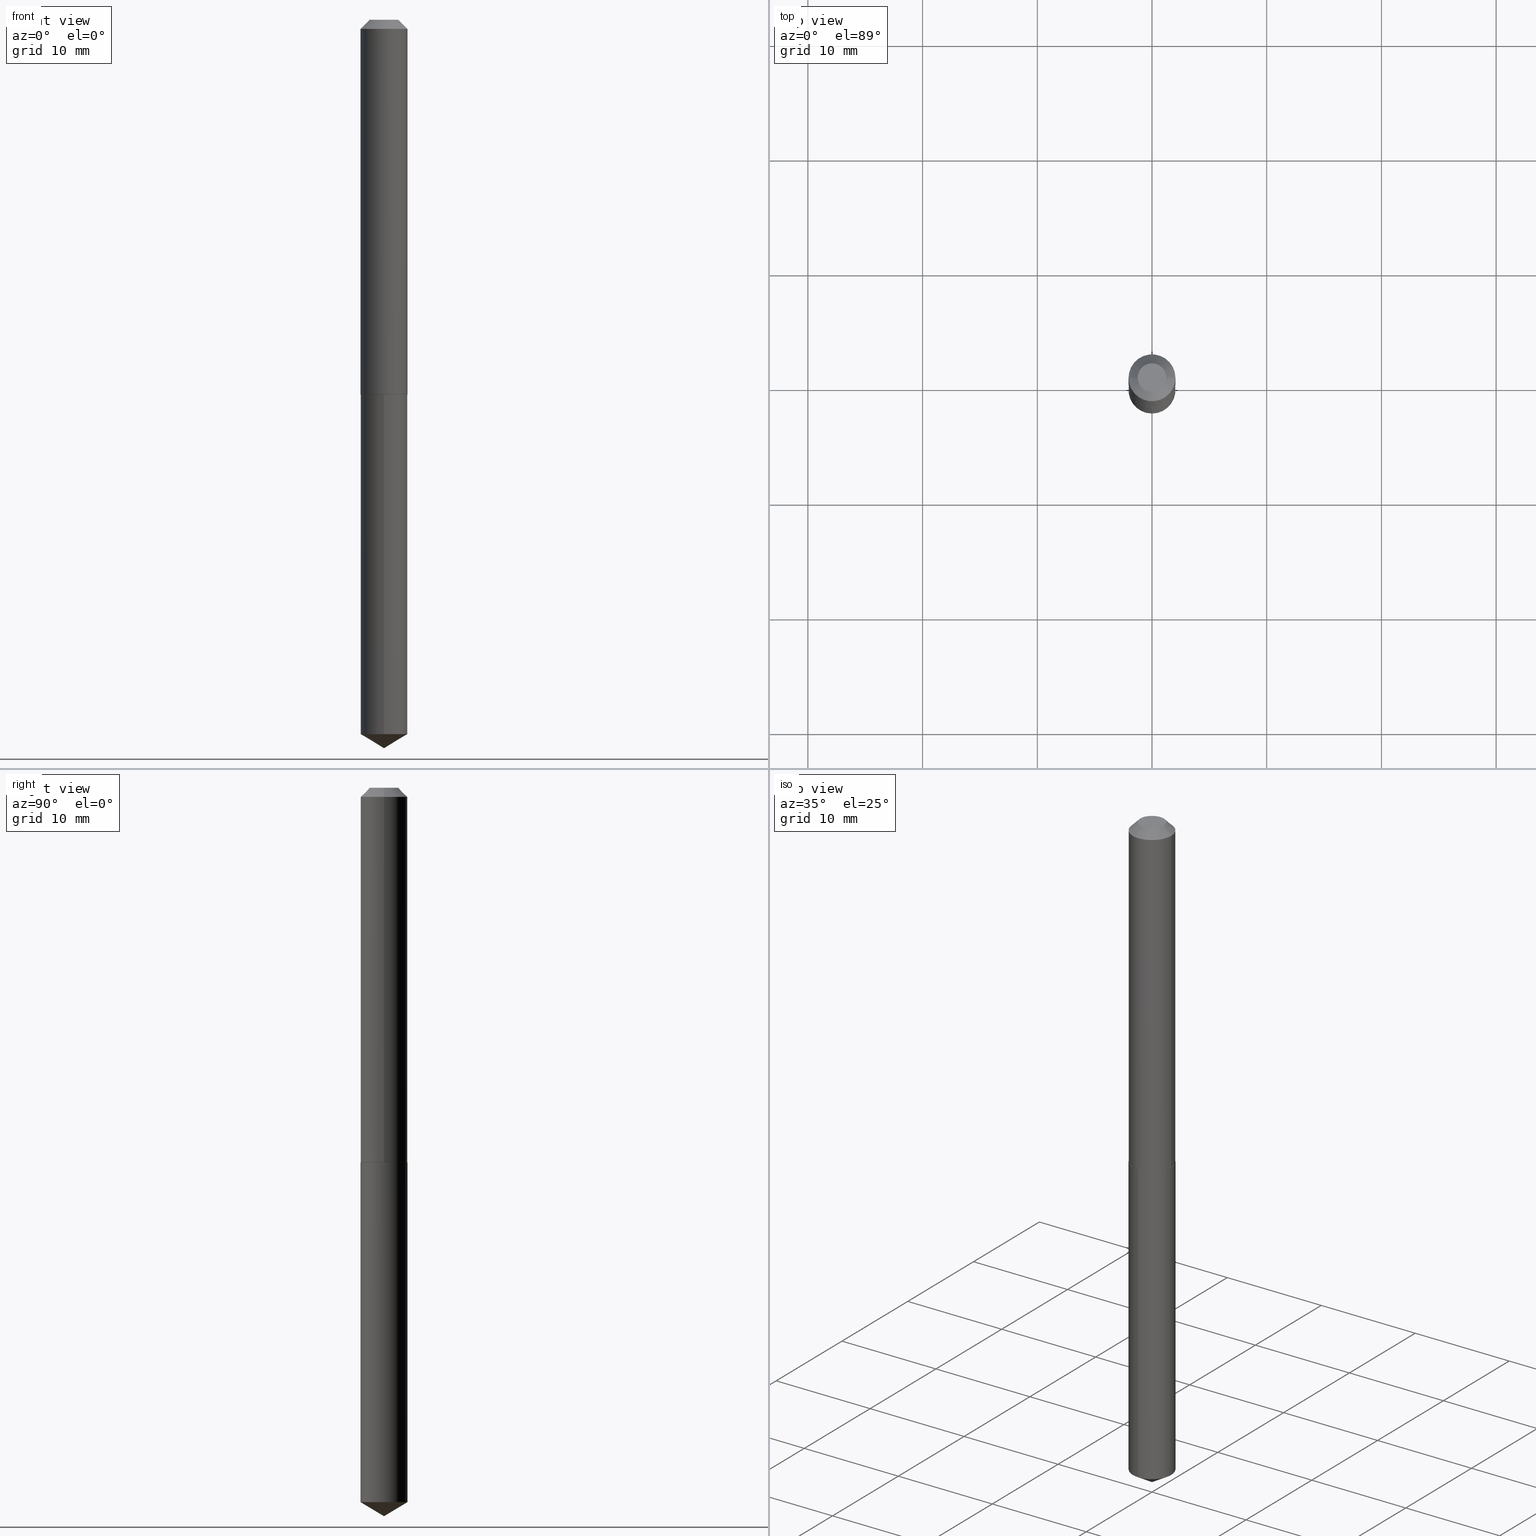
[diagram: canonical four-view strip — front | top / right | iso, engineering-drawing reading convention]
A machine part, canonical four-view strip (front | top / right | iso — engineering-drawing reading convention). The complete STEP part file that produces these views, byte-faithful:
ISO-10303-21;
HEADER;
FILE_DESCRIPTION (( 'STEP AP203' ),
    '1' );
FILE_NAME ('51020.STEP',
    '2024-04-22T18:13:58',
    ( '' ),
    ( '' ),
    'SwSTEP 2.0',
    'SolidWorks 2023',
    '' );
FILE_SCHEMA (( 'CONFIG_CONTROL_DESIGN' ));
ENDSEC;

DATA;
#1 = AXIS2_PLACEMENT_3D ( 'NONE', #347, #283, #183 ) ;
#2 = APPROVAL_DATE_TIME ( #356, #159 ) ;
#3 = LINE ( 'NONE', #121, #148 ) ;
#4 = ORIENTED_EDGE ( 'NONE', *, *, #10, .T. ) ;
#5 = CARTESIAN_POINT ( 'NONE',  ( -0.08050000000000016864, -3.916312358795983195E-15, -1.285500000000000309 ) ) ;
#6 = CARTESIAN_POINT ( 'NONE',  ( -0.08050000000000016864, -3.916312358795983195E-15, -1.285500000000000309 ) ) ;
#7 = CIRCLE ( 'NONE', #166, 0.08050000000000016864 ) ;
#8 = LINE ( 'NONE', #5, #309 ) ;
#9 = LINE ( 'NONE', #340, #39 ) ;
#10 = EDGE_CURVE ( 'NONE', #119, #146, #76, .T. ) ;
#11 = FACE_OUTER_BOUND ( 'NONE', #308, .T. ) ;
#12 = VERTEX_POINT ( 'NONE', #6 ) ;
#13 = CARTESIAN_POINT ( 'NONE',  ( -0.08050000000000000211, -1.726717124173974780E-15, -0.03125000000000020123 ) ) ;
#14 = PERSON_AND_ORGANIZATION_ROLE ( 'classification_officer' ) ;
#15 = DIRECTION ( 'NONE',  ( -2.445462856244294093E-29, 3.491489859497081340E-15, 1.000000000000000000 ) ) ;
#16 = FACE_OUTER_BOUND ( 'NONE', #217, .T. ) ;
#17 = AXIS2_PLACEMENT_3D ( 'NONE', #282, #127, #362 ) ;
#18 = ORIENTED_EDGE ( 'NONE', *, *, #53, .F. ) ;
#19 = APPROVAL_ROLE ( '' ) ;
#20 = LINE ( 'NONE', #354, #384 ) ;
#21 = VECTOR ( 'NONE', #311, 39.37007874015748143 ) ;
#22 = AXIS2_PLACEMENT_3D ( 'NONE', #318, #191, #294 ) ;
#23 = EDGE_CURVE ( 'NONE', #90, #184, #124, .T. ) ;
#24 =( NAMED_UNIT ( * ) SI_UNIT ( $, .STERADIAN. ) SOLID_ANGLE_UNIT ( ) );
#25 = CIRCLE ( 'NONE', #225, 0.08050000000000000211 ) ;
#26 = AXIS2_PLACEMENT_3D ( 'NONE', #164, #128, #289 ) ;
#27 = ORIENTED_EDGE ( 'NONE', *, *, #51, .F. ) ;
#28 = EDGE_LOOP ( 'NONE', ( #388, #97, #193, #313 ) ) ;
#29 = CONICAL_SURFACE ( 'NONE', #140, 0.08050000000000016864, 0.7853981633975507526 ) ;
#30 = CALENDAR_DATE ( 2024, 22, 4 ) ;
#31 = ADVANCED_FACE ( 'NONE', ( #244 ), #254, .T. ) ;
#32 = DIRECTION ( 'NONE',  ( 1.000000000000000000, -6.982962677686266711E-15, 0.000000000000000000 ) ) ;
#33 = CARTESIAN_POINT ( 'NONE',  ( 6.113672578050002293E-29, -8.728702733620781152E-15, -2.500000000000000000 ) ) ;
#34 = CARTESIAN_POINT ( 'NONE',  ( 0.08050000000000000211, -6.613788806594571634E-16, -0.03125000000000020123 ) ) ;
#35 = EDGE_LOOP ( 'NONE', ( #18, #153, #300, #338 ) ) ;
#36 = CARTESIAN_POINT ( 'NONE',  ( 5.719869022869407167E-16, 0.08049999999999550571, -1.286000000000000476 ) ) ;
#37 = ADVANCED_FACE ( 'NONE', ( #349 ), #74, .T. ) ;
#38 = LINE ( 'NONE', #34, #215 ) ;
#39 = VECTOR ( 'NONE', #65, 39.37007874015748143 ) ;
#40 = CC_DESIGN_APPROVAL ( #343, ( #66 ) ) ;
#41 = DIRECTION ( 'NONE',  ( -2.445468806185136597E-29, 3.491481338843145583E-15, 1.000000000000000000 ) ) ;
#42 = CARTESIAN_POINT ( 'NONE',  ( 0.08050000000000008538, -5.621284955537450540E-16, 3.925322304515732881E-30 ) ) ;
#43 = ORIENTED_EDGE ( 'NONE', *, *, #23, .T. ) ;
#44 = DIRECTION ( 'NONE',  ( -2.445468806185136597E-29, 3.491481338843145583E-15, 1.000000000000000000 ) ) ;
#45 = PERSON_AND_ORGANIZATION_ROLE ( 'creator' ) ;
#46 = DIRECTION ( 'NONE',  ( -6.982962677686266711E-15, -1.000000000000000000, 3.393599992129519526E-15 ) ) ;
#47 = FACE_OUTER_BOUND ( 'NONE', #327, .T. ) ;
#48 = LOCAL_TIME ( 14, 13, 58.00000000000000000, #257 ) ;
#49 = CARTESIAN_POINT ( 'NONE',  ( 7.834277737929405928E-31, -8.881490651567582348E-15, -1.286000000000000254 ) ) ;
#50 = APPROVAL_DATE_TIME ( #319, #105 ) ;
#51 = EDGE_CURVE ( 'NONE', #317, #286, #387, .T. ) ;
#52 = DIMENSIONAL_EXPONENTS ( 1.000000000000000000, 0.000000000000000000, 0.000000000000000000, 0.000000000000000000, 0.000000000000000000, 0.000000000000000000, 0.000000000000000000 ) ;
#53 = EDGE_CURVE ( 'NONE', #317, #71, #38, .T. ) ;
#54 = ORIENTED_EDGE ( 'NONE', *, *, #120, .T. ) ;
#55 = CONICAL_SURFACE ( 'NONE', #22, 65.52281426576895740, 1.029744258676658086 ) ;
#56 = ADVANCED_FACE ( 'NONE', ( #152 ), #365, .F. ) ;
#57 = ORIENTED_EDGE ( 'NONE', *, *, #240, .F. ) ;
#58 = CONICAL_SURFACE ( 'NONE', #290, 0.08050000000000000211, 0.7853981633974450594 ) ;
#59 = VERTEX_POINT ( 'NONE', #227 ) ;
#60 = DIRECTION ( 'NONE',  ( 1.000000000000000000, -6.982962677686264344E-15, 0.000000000000000000 ) ) ;
#61 = FACE_OUTER_BOUND ( 'NONE', #84, .T. ) ;
#62 = DIRECTION ( 'NONE',  ( 0.7071067811865452413, -7.319954787623248157E-15, -0.7071067811865497932 ) ) ;
#63 = ORIENTED_EDGE ( 'NONE', *, *, #155, .F. ) ;
#64 = DIRECTION ( 'NONE',  ( -2.445462856244294093E-29, 3.491489859497081340E-15, 1.000000000000000000 ) ) ;
#65 = DIRECTION ( 'NONE',  ( -2.445468806185136877E-29, 3.491481338843145188E-15, 1.000000000000000000 ) ) ;
#66 = PRODUCT_DEFINITION_FORMATION_WITH_SPECIFIED_SOURCE ( 'ANY', '', #269, .NOT_KNOWN. ) ;
#67 = DIRECTION ( 'NONE',  ( 2.445468806185136597E-29, -3.491481338843145583E-15, -1.000000000000000000 ) ) ;
#68 = ORIENTED_EDGE ( 'NONE', *, *, #112, .F. ) ;
#69 = CARTESIAN_POINT ( 'NONE',  ( 0.000000000000000000, 0.000000000000000000, 0.000000000000000000 ) ) ;
#70 = CALENDAR_DATE ( 2024, 22, 4 ) ;
#71 = VERTEX_POINT ( 'NONE', #219 ) ;
#72 = EDGE_CURVE ( 'NONE', #150, #71, #175, .T. ) ;
#73 = CARTESIAN_POINT ( 'NONE',  ( 5.995379515022905912E-29, -8.559832841138121556E-15, -2.451630720168282096 ) ) ;
#74 = CYLINDRICAL_SURFACE ( 'NONE', #328, 0.08050000000000008538 ) ;
#75 = EDGE_CURVE ( 'NONE', #12, #150, #9, .T. ) ;
#76 = CIRCLE ( 'NONE', #279, 0.08050000000000000211 ) ;
#77 = CARTESIAN_POINT ( 'NONE',  ( 3.143650150350993956E-29, -4.488299261082864747E-15, -1.285500000000000309 ) ) ;
#78 = DIRECTION ( 'NONE',  ( 1.000000000000000000, -6.982962677686266711E-15, 4.876176775795936353E-29 ) ) ;
#79 = CC_DESIGN_PERSON_AND_ORGANIZATION_ASSIGNMENT ( #285, #14, ( #199 ) ) ;
#80 = DIRECTION ( 'NONE',  ( 1.000000000000000000, -6.982962677686264344E-15, 0.000000000000000000 ) ) ;
#81 = APPROVAL_STATUS ( 'not_yet_approved' ) ;
#82 = PERSON_AND_ORGANIZATION ( #208, #207 ) ;
#83 = EDGE_CURVE ( 'NONE', #59, #71, #187, .T. ) ;
#84 = EDGE_LOOP ( 'NONE', ( #43, #101 ) ) ;
#85 = CONICAL_SURFACE ( 'NONE', #272, 0.08050000000000000211, 0.7853981633974450594 ) ;
#86 = APPROVAL_PERSON_ORGANIZATION ( #163, #159, #108 ) ;
#87 = ADVANCED_FACE ( 'NONE', ( #158 ), #29, .T. ) ;
#88 = APPLICATION_CONTEXT ( 'configuration controlled 3d designs of mechanical parts and assemblies' ) ;
#89 = COORDINATED_UNIVERSAL_TIME_OFFSET ( 5, 0, .BEHIND. ) ;
#90 = VERTEX_POINT ( 'NONE', #189 ) ;
#91 = DIRECTION ( 'NONE',  ( -1.000000000000000000, 6.982962677686266711E-15, 0.000000000000000000 ) ) ;
#92 = EDGE_CURVE ( 'NONE', #94, #119, #364, .T. ) ;
#93 = CLOSED_SHELL ( 'NONE', ( #389, #212, #246, #31, #173 ) ) ;
#94 = VERTEX_POINT ( 'NONE', #303 ) ;
#95 = DIRECTION ( 'NONE',  ( -0.7071067811866199593, 7.493145998870616062E-15, 0.7071067811864750752 ) ) ;
#96 = DIRECTION ( 'NONE',  ( 2.438088387897960049E-29, -3.491481338843145188E-15, -1.000000000000000000 ) ) ;
#97 = ORIENTED_EDGE ( 'NONE', *, *, #240, .T. ) ;
#98 = LINE ( 'NONE', #339, #171 ) ;
#99 = DIRECTION ( 'NONE',  ( 1.000000000000000000, -6.982962677686266711E-15, 4.876176775795936353E-29 ) ) ;
#100 = CARTESIAN_POINT ( 'NONE',  ( 3.143650150350993956E-29, -4.488299261082864747E-15, -1.285500000000000309 ) ) ;
#101 = ORIENTED_EDGE ( 'NONE', *, *, #211, .T. ) ;
#102 = AXIS2_PLACEMENT_3D ( 'NONE', #109, #15, #133 ) ;
#103 = LOCAL_TIME ( 14, 13, 58.00000000000000000, #169 ) ;
#104 = DIRECTION ( 'NONE',  ( 1.000000000000000000, -6.982962677686264344E-15, 0.000000000000000000 ) ) ;
#105 = APPROVAL ( #81, 'UNSPECIFIED' ) ;
#106 = DIRECTION ( 'NONE',  ( -2.445468806185136597E-29, 3.491481338843145583E-15, 1.000000000000000000 ) ) ;
#107 = DIRECTION ( 'NONE',  ( 1.000000000000000000, -6.982962677686269866E-15, 0.000000000000000000 ) ) ;
#108 = APPROVAL_ROLE ( '' ) ;
#109 = CARTESIAN_POINT ( 'NONE',  ( 3.144872884754086197E-29, -4.490045001752285461E-15, -1.286000000000000254 ) ) ;
#110 = FACE_OUTER_BOUND ( 'NONE', #379, .T. ) ;
#111 = PERSON_AND_ORGANIZATION ( #208, #207 ) ;
#112 = EDGE_CURVE ( 'NONE', #94, #146, #304, .T. ) ;
#113 = CYLINDRICAL_SURFACE ( 'NONE', #238, 0.08050000000000000211 ) ;
#114 = CC_DESIGN_APPROVAL ( #105, ( #331 ) ) ;
#115 = DATE_AND_TIME ( #346, #296 ) ;
#116 = CARTESIAN_POINT ( 'NONE',  ( 0.08000000000000016820, -5.048682015967188692E-15, -1.286000000000000254 ) ) ;
#117 = PERSON_AND_ORGANIZATION ( #208, #207 ) ;
#118 = MECHANICAL_CONTEXT ( 'NONE', #353, 'mechanical' ) ;
#119 = VERTEX_POINT ( 'NONE', #276 ) ;
#120 = EDGE_CURVE ( 'NONE', #333, #12, #8, .T. ) ;
#121 = CARTESIAN_POINT ( 'NONE',  ( 5.719869022869119232E-16, 0.08049999999999550571, -1.286000000000000476 ) ) ;
#122 = ORIENTED_EDGE ( 'NONE', *, *, #131, .T. ) ;
#123 = ORIENTED_EDGE ( 'NONE', *, *, #380, .F. ) ;
#124 = CIRCLE ( 'NONE', #102, 0.08050000000000000211 ) ;
#125 = CARTESIAN_POINT ( 'NONE',  ( 3.144872884754086197E-29, -4.490045001752285461E-15, -1.286000000000000254 ) ) ;
#126 = DIRECTION ( 'NONE',  ( -1.000000000000000000, 6.982962677686265922E-15, -4.876176775795935793E-29 ) ) ;
#127 = DIRECTION ( 'NONE',  ( -2.445462856244294093E-29, 3.491489859497081340E-15, 1.000000000000000000 ) ) ;
#128 = DIRECTION ( 'NONE',  ( -2.445468806185136597E-29, 3.491481338843145583E-15, 1.000000000000000000 ) ) ;
#129 = PERSON_AND_ORGANIZATION_ROLE ( 'design_owner' ) ;
#130 = DESIGN_CONTEXT ( 'detailed design', #88, 'design' ) ;
#131 = EDGE_CURVE ( 'NONE', #71, #150, #25, .T. ) ;
#132 = FACE_OUTER_BOUND ( 'NONE', #35, .T. ) ;
#133 = DIRECTION ( 'NONE',  ( -6.982962677686266711E-15, -1.000000000000000000, 3.393599992129519526E-15 ) ) ;
#134 = LOCAL_TIME ( 14, 13, 58.00000000000000000, #89 ) ;
#135 = DIRECTION ( 'NONE',  ( 1.000000000000000000, -6.982962677686264344E-15, 0.000000000000000000 ) ) ;
#136 = ORIENTED_EDGE ( 'NONE', *, *, #211, .F. ) ;
#137 = CARTESIAN_POINT ( 'NONE',  ( -5.621284955537130065E-16, -0.08050000000000449851, -1.285999999999999810 ) ) ;
#138 = PERSON_AND_ORGANIZATION ( #208, #207 ) ;
#139 = DATE_AND_TIME ( #196, #103 ) ;
#140 = AXIS2_PLACEMENT_3D ( 'NONE', #252, #278, #60 ) ;
#141 = CARTESIAN_POINT ( 'NONE',  ( -0.08000000000000016820, -3.918961585970093607E-15, -1.286000000000000254 ) ) ;
#142 = ADVANCED_FACE ( 'NONE', ( #11 ), #85, .T. ) ;
#143 = SHAPE_DEFINITION_REPRESENTATION ( #144, #180 ) ;
#144 = PRODUCT_DEFINITION_SHAPE ( 'NONE', 'NONE',  #331 ) ;
#145 = CC_DESIGN_PERSON_AND_ORGANIZATION_ASSIGNMENT ( #111, #355, ( #66 ) ) ;
#146 = VERTEX_POINT ( 'NONE', #336 ) ;
#147 = ORIENTED_EDGE ( 'NONE', *, *, #75, .T. ) ;
#148 = VECTOR ( 'NONE', #241, 39.37007874015748143 ) ;
#149 = DIRECTION ( 'NONE',  ( 6.982962677686265922E-15, 1.000000000000000000, -3.491489859497080946E-15 ) ) ;
#150 = VERTEX_POINT ( 'NONE', #13 ) ;
#151 = DIRECTION ( 'NONE',  ( 1.000000000000000000, -6.982962677686269866E-15, 0.000000000000000000 ) ) ;
#152 = FACE_OUTER_BOUND ( 'NONE', #330, .T. ) ;
#153 = ORIENTED_EDGE ( 'NONE', *, *, #176, .F. ) ;
#154 = CARTESIAN_POINT ( 'NONE',  ( 3.743544432386666377E-48, -5.344789307371228159E-34, -1.530808498934194860E-19 ) ) ;
#155 = EDGE_CURVE ( 'NONE', #258, #333, #262, .T. ) ;
#156 = ORIENTED_EDGE ( 'NONE', *, *, #314, .F. ) ;
#157 = DIRECTION ( 'NONE',  ( -6.982962677686266711E-15, -1.000000000000000000, 3.393599992129519526E-15 ) ) ;
#158 = FACE_OUTER_BOUND ( 'NONE', #224, .T. ) ;
#159 = APPROVAL ( #378, 'UNSPECIFIED' ) ;
#160 = CARTESIAN_POINT ( 'NONE',  ( 6.113657140610735794E-29, -8.728724648742704336E-15, -2.500000000000000000 ) ) ;
#161 = DIRECTION ( 'NONE',  ( -2.445462856244294093E-29, 3.491489859497081340E-15, 1.000000000000000000 ) ) ;
#162 = DIRECTION ( 'NONE',  ( -2.445468806185136597E-29, 3.491481338843145583E-15, 1.000000000000000000 ) ) ;
#163 = PERSON_AND_ORGANIZATION ( #208, #207 ) ;
#164 = CARTESIAN_POINT ( 'NONE',  ( 7.487088864773332754E-48, -1.068957861474245632E-33, -3.061616997868389720E-19 ) ) ;
#165 = CIRCLE ( 'NONE', #342, 0.04925000000000000211 ) ;
#166 = AXIS2_PLACEMENT_3D ( 'NONE', #352, #44, #135 ) ;
#167 = DIRECTION ( 'NONE',  ( -6.982962677686266711E-15, -1.000000000000000000, 3.393599992129519526E-15 ) ) ;
#168 = LINE ( 'NONE', #137, #351 ) ;
#169 = COORDINATED_UNIVERSAL_TIME_OFFSET ( 5, 0, .BEHIND. ) ;
#170 = CARTESIAN_POINT ( 'NONE',  ( 0.000000000000000000, 0.000000000000000000, 0.000000000000000000 ) ) ;
#171 = VECTOR ( 'NONE', #274, 39.37007874015748143 ) ;
#172 =( NAMED_UNIT ( * ) PLANE_ANGLE_UNIT ( ) SI_UNIT ( $, .RADIAN. ) );
#173 = ADVANCED_FACE ( 'NONE', ( #61 ), #372, .F. ) ;
#174 = ORIENTED_EDGE ( 'NONE', *, *, #209, .T. ) ;
#175 = CIRCLE ( 'NONE', #1, 0.08050000000000000211 ) ;
#176 = EDGE_CURVE ( 'NONE', #286, #317, #165, .T. ) ;
#177 = DIRECTION ( 'NONE',  ( 6.090539988449793424E-15, 0.8571673007021159973, 0.5150380749100480493 ) ) ;
#178 = AXIS2_PLACEMENT_3D ( 'NONE', #170, #326, #206 ) ;
#179 = ORIENTED_EDGE ( 'NONE', *, *, #83, .F. ) ;
#180 = ADVANCED_BREP_SHAPE_REPRESENTATION ( '51020', ( #382, #390, #178 ), #210 ) ;
#181 = ORIENTED_EDGE ( 'NONE', *, *, #10, .F. ) ;
#182 = DIRECTION ( 'NONE',  ( 2.445462856244294374E-29, -3.491489859497080946E-15, -1.000000000000000000 ) ) ;
#183 = DIRECTION ( 'NONE',  ( 1.000000000000000000, -6.982962677686266711E-15, 0.000000000000000000 ) ) ;
#184 = VERTEX_POINT ( 'NONE', #36 ) ;
#185 = DIRECTION ( 'NONE',  ( -5.985567269335957057E-15, -0.8571673007021123336, 0.5150380749100540445 ) ) ;
#186 = EDGE_CURVE ( 'NONE', #258, #59, #98, .T. ) ;
#187 = LINE ( 'NONE', #42, #21 ) ;
#188 = APPROVAL_PERSON_ORGANIZATION ( #260, #105, #19 ) ;
#189 = CARTESIAN_POINT ( 'NONE',  ( -5.621284955537130065E-16, -0.08050000000000449851, -1.285999999999999810 ) ) ;
#190 = ORIENTED_EDGE ( 'NONE', *, *, #120, .F. ) ;
#191 = DIRECTION ( 'NONE',  ( -2.445462856244294093E-29, 3.491489859497081340E-15, 1.000000000000000000 ) ) ;
#192 = DATE_AND_TIME ( #70, #264 ) ;
#193 = ORIENTED_EDGE ( 'NONE', *, *, #83, .T. ) ;
#194 = UNCERTAINTY_MEASURE_WITH_UNIT (LENGTH_MEASURE( 1.000000000000000082E-05 ), #265, 'distance_accuracy_value', 'NONE');
#195 = PLANE ( 'NONE',  #302 ) ;
#196 = CALENDAR_DATE ( 2024, 22, 4 ) ;
#197 = DIRECTION ( 'NONE',  ( -2.445462856244294093E-29, 3.491489859497081340E-15, 1.000000000000000000 ) ) ;
#198 = VECTOR ( 'NONE', #177, 39.37007874015748854 ) ;
#199 = SECURITY_CLASSIFICATION ( '', '', #204 ) ;
#200 = DIRECTION ( 'NONE',  ( -6.982962677686266711E-15, -1.000000000000000000, 3.393599992129519526E-15 ) ) ;
#201 = APPLICATION_PROTOCOL_DEFINITION ( 'international standard', 'config_control_design', 1994, #88 ) ;
#202 = APPROVAL_DATE_TIME ( #115, #343 ) ;
#203 = DIRECTION ( 'NONE',  ( -2.438088387897960049E-29, 3.491481338843145188E-15, 1.000000000000000000 ) ) ;
#204 = SECURITY_CLASSIFICATION_LEVEL ( 'unclassified' ) ;
#205 = CLOSED_SHELL ( 'NONE', ( #142, #263, #87, #386, #323, #37, #236, #56 ) ) ;
#206 = DIRECTION ( 'NONE',  ( 1.000000000000000000, 0.000000000000000000, 0.000000000000000000 ) ) ;
#207 = ORGANIZATION ( 'UNSPECIFIED', 'UNSPECIFIED', '' ) ;
#208 = PERSON ( 'UNSPECIFIED', 'UNSPECIFIED', 'UNSPECIFIED', ('UNSPECIFIED'), ('UNSPECIFIED'), ('UNSPECIFIED') ) ;
#209 = EDGE_CURVE ( 'NONE', #146, #184, #3, .T. ) ;
#210 =( GEOMETRIC_REPRESENTATION_CONTEXT ( 3 ) GLOBAL_UNCERTAINTY_ASSIGNED_CONTEXT ( ( #194 ) ) GLOBAL_UNIT_ASSIGNED_CONTEXT ( ( #265, #172, #24 ) ) REPRESENTATION_CONTEXT ( 'NONE', 'WORKASPACE' ) );
#211 = EDGE_CURVE ( 'NONE', #184, #90, #373, .T. ) ;
#212 = ADVANCED_FACE ( 'NONE', ( #284 ), #358, .T. ) ;
#213 = ORIENTED_EDGE ( 'NONE', *, *, #92, .F. ) ;
#214 = DIRECTION ( 'NONE',  ( 1.000000000000000000, -6.982962677686267499E-15, 4.876119146040168273E-29 ) ) ;
#215 = VECTOR ( 'NONE', #62, 39.37007874015748143 ) ;
#216 = CC_DESIGN_APPROVAL ( #159, ( #199 ) ) ;
#217 = EDGE_LOOP ( 'NONE', ( #190, #239, #275, #57 ) ) ;
#218 = DIRECTION ( 'NONE',  ( -2.445468806185136597E-29, 3.491481338843145583E-15, 1.000000000000000000 ) ) ;
#219 = CARTESIAN_POINT ( 'NONE',  ( 0.08050000000000000211, -6.712372873925933657E-16, -0.03125000000000020123 ) ) ;
#220 = CC_DESIGN_DATE_AND_TIME_ASSIGNMENT ( #139, #253, ( #331 ) ) ;
#221 = ORIENTED_EDGE ( 'NONE', *, *, #51, .T. ) ;
#222 = ORIENTED_EDGE ( 'NONE', *, *, #155, .T. ) ;
#223 = DIRECTION ( 'NONE',  ( -2.445468806185136597E-29, 3.491481338843145583E-15, 1.000000000000000000 ) ) ;
#224 = EDGE_LOOP ( 'NONE', ( #222, #54, #123, #332 ) ) ;
#225 = AXIS2_PLACEMENT_3D ( 'NONE', #243, #218, #32 ) ;
#226 = APPLICATION_PROTOCOL_DEFINITION ( 'international standard', 'config_control_design', 1994, #353 ) ;
#227 = CARTESIAN_POINT ( 'NONE',  ( 0.08050000000000016864, -5.050427756636610195E-15, -1.285500000000000309 ) ) ;
#228 = DIRECTION ( 'NONE',  ( -0.7071067811865452413, 2.468850131082233000E-15, -0.7071067811865497932 ) ) ;
#229 = CARTESIAN_POINT ( 'NONE',  ( 5.995379515022905912E-29, -8.559832841138121556E-15, -2.451630720168282096 ) ) ;
#230 = LENGTH_MEASURE_WITH_UNIT ( LENGTH_MEASURE( 0.02539999999999999897 ), #292 );
#231 = PERSON_AND_ORGANIZATION_ROLE ( 'creator' ) ;
#232 = DIRECTION ( 'NONE',  ( -2.445468806185136597E-29, 3.491481338843145583E-15, 1.000000000000000000 ) ) ;
#233 = CC_DESIGN_DATE_AND_TIME_ASSIGNMENT ( #192, #316, ( #199 ) ) ;
#234 = APPROVAL_ROLE ( '' ) ;
#235 = CIRCLE ( 'NONE', #291, 0.08050000000000016864 ) ;
#236 = ADVANCED_FACE ( 'NONE', ( #132 ), #58, .T. ) ;
#237 = ORIENTED_EDGE ( 'NONE', *, *, #209, .F. ) ;
#238 = AXIS2_PLACEMENT_3D ( 'NONE', #325, #322, #167 ) ;
#239 = ORIENTED_EDGE ( 'NONE', *, *, #299, .T. ) ;
#240 = EDGE_CURVE ( 'NONE', #12, #59, #235, .T. ) ;
#241 = DIRECTION ( 'NONE',  ( -2.445462856244294093E-29, 3.491489859497080946E-15, 1.000000000000000000 ) ) ;
#242 = ORIENTED_EDGE ( 'NONE', *, *, #176, .T. ) ;
#243 = CARTESIAN_POINT ( 'NONE',  ( 7.642090019328600035E-31, -1.091087918388489897E-16, -0.03125000000000020123 ) ) ;
#244 = FACE_OUTER_BOUND ( 'NONE', #298, .T. ) ;
#245 = AXIS2_PLACEMENT_3D ( 'NONE', #73, #315, #200 ) ;
#246 = ADVANCED_FACE ( 'NONE', ( #288 ), #55, .T. ) ;
#247 = ORIENTED_EDGE ( 'NONE', *, *, #23, .F. ) ;
#248 = DIRECTION ( 'NONE',  ( -2.445468806185136597E-29, 3.491481338843145583E-15, 1.000000000000000000 ) ) ;
#249 = EDGE_LOOP ( 'NONE', ( #366, #147, #344, #179 ) ) ;
#250 = DIRECTION ( 'NONE',  ( 2.445468806185136597E-29, -3.491481338843145583E-15, -1.000000000000000000 ) ) ;
#251 = EDGE_LOOP ( 'NONE', ( #213, #270, #181 ) ) ;
#252 = CARTESIAN_POINT ( 'NONE',  ( 3.143650150350993956E-29, -4.488299261082864747E-15, -1.285500000000000309 ) ) ;
#253 = DATE_TIME_ROLE ( 'creation_date' ) ;
#254 = CYLINDRICAL_SURFACE ( 'NONE', #350, 0.08050000000000000211 ) ;
#255 = AXIS2_PLACEMENT_3D ( 'NONE', #341, #64, #157 ) ;
#256 = CARTESIAN_POINT ( 'NONE',  ( 3.144872884754086197E-29, -4.490045001752285461E-15, -1.286000000000000254 ) ) ;
#257 = COORDINATED_UNIVERSAL_TIME_OFFSET ( 5, 0, .BEHIND. ) ;
#258 = VERTEX_POINT ( 'NONE', #116 ) ;
#259 = DIRECTION ( 'NONE',  ( 1.000000000000000000, -6.982962677686265922E-15, 4.876176775795935793E-29 ) ) ;
#260 = PERSON_AND_ORGANIZATION ( #208, #207 ) ;
#261 = PERSON_AND_ORGANIZATION ( #208, #207 ) ;
#262 = CIRCLE ( 'NONE', #360, 0.08000000000000016820 ) ;
#263 = ADVANCED_FACE ( 'NONE', ( #266 ), #345, .T. ) ;
#264 = LOCAL_TIME ( 14, 13, 58.00000000000000000, #374 ) ;
#265 =( CONVERSION_BASED_UNIT ( 'INCH', #230 ) LENGTH_UNIT ( ) NAMED_UNIT ( #52 ) );
#266 = FACE_OUTER_BOUND ( 'NONE', #249, .T. ) ;
#267 = AXIS2_PLACEMENT_3D ( 'NONE', #256, #232, #107 ) ;
#268 = ORIENTED_EDGE ( 'NONE', *, *, #369, .T. ) ;
#269 = PRODUCT ( '51020', '51020', '', ( #118 ) ) ;
#270 = ORIENTED_EDGE ( 'NONE', *, *, #112, .T. ) ;
#271 = PRODUCT_RELATED_PRODUCT_CATEGORY ( 'detail', '', ( #269 ) ) ;
#272 = AXIS2_PLACEMENT_3D ( 'NONE', #312, #67, #91 ) ;
#273 = CONICAL_SURFACE ( 'NONE', #321, 0.08050000000000016864, 0.7853981633975507526 ) ;
#274 = DIRECTION ( 'NONE',  ( 0.7071067811866199593, -2.468850131083015945E-15, 0.7071067811864750752 ) ) ;
#275 = ORIENTED_EDGE ( 'NONE', *, *, #186, .T. ) ;
#276 = CARTESIAN_POINT ( 'NONE',  ( -5.621284955536844103E-16, -0.08050000000000855083, -2.451630720168281652 ) ) ;
#277 = ORIENTED_EDGE ( 'NONE', *, *, #92, .T. ) ;
#278 = DIRECTION ( 'NONE',  ( -2.445468806185136597E-29, 3.491481338843145583E-15, 1.000000000000000000 ) ) ;
#279 = AXIS2_PLACEMENT_3D ( 'NONE', #229, #161, #46 ) ;
#280 = CIRCLE ( 'NONE', #245, 0.08050000000000000211 ) ;
#281 = CARTESIAN_POINT ( 'NONE',  ( 3.144872884754086197E-29, -4.490045001752285461E-15, -1.286000000000000254 ) ) ;
#282 = CARTESIAN_POINT ( 'NONE',  ( -9.016440041423361419E-28, 1.287315169976797352E-13, 36.87007874015748143 ) ) ;
#283 = DIRECTION ( 'NONE',  ( -2.445468806185136597E-29, 3.491481338843145583E-15, 1.000000000000000000 ) ) ;
#284 = FACE_OUTER_BOUND ( 'NONE', #251, .T. ) ;
#285 = PERSON_AND_ORGANIZATION ( #208, #207 ) ;
#286 = VERTEX_POINT ( 'NONE', #377 ) ;
#287 = CC_DESIGN_PERSON_AND_ORGANIZATION_ASSIGNMENT ( #138, #45, ( #66 ) ) ;
#288 = FACE_OUTER_BOUND ( 'NONE', #335, .T. ) ;
#289 = DIRECTION ( 'NONE',  ( 1.000000000000000000, -6.982962677686267499E-15, 4.876119146040168273E-29 ) ) ;
#290 = AXIS2_PLACEMENT_3D ( 'NONE', #334, #250, #370 ) ;
#291 = AXIS2_PLACEMENT_3D ( 'NONE', #100, #223, #104 ) ;
#292 =( LENGTH_UNIT ( ) NAMED_UNIT ( * ) SI_UNIT ( $, .METRE. ) );
#293 = CC_DESIGN_PERSON_AND_ORGANIZATION_ASSIGNMENT ( #82, #129, ( #269 ) ) ;
#294 = DIRECTION ( 'NONE',  ( -6.982962677686265133E-15, -1.000000000000000000, 3.468864327941566210E-15 ) ) ;
#295 = VECTOR ( 'NONE', #185, 39.37007874015748143 ) ;
#296 = LOCAL_TIME ( 14, 13, 58.00000000000000000, #381 ) ;
#297 = CARTESIAN_POINT ( 'NONE',  ( 0.04925000000000000211, -4.996292035248525311E-16, -3.061616997838901325E-19 ) ) ;
#298 = EDGE_LOOP ( 'NONE', ( #237, #268, #371, #136 ) ) ;
#299 = EDGE_CURVE ( 'NONE', #333, #258, #375, .T. ) ;
#300 = ORIENTED_EDGE ( 'NONE', *, *, #314, .T. ) ;
#301 = AXIS2_PLACEMENT_3D ( 'NONE', #367, #182, #149 ) ;
#302 = AXIS2_PLACEMENT_3D ( 'NONE', #49, #203, #259 ) ;
#303 = CARTESIAN_POINT ( 'NONE',  ( 6.113657140610735794E-29, -8.728724648742704336E-15, -2.500000000000000000 ) ) ;
#304 = LINE ( 'NONE', #33, #198 ) ;
#305 = ORIENTED_EDGE ( 'NONE', *, *, #369, .F. ) ;
#306 = CARTESIAN_POINT ( 'NONE',  ( 7.487088864773332754E-48, -1.068957861474245632E-33, -3.061616997868389720E-19 ) ) ;
#307 = ORIENTED_EDGE ( 'NONE', *, *, #53, .T. ) ;
#308 = EDGE_LOOP ( 'NONE', ( #27, #307, #122, #156 ) ) ;
#309 = VECTOR ( 'NONE', #95, 39.37007874015748143 ) ;
#310 = CC_DESIGN_SECURITY_CLASSIFICATION ( #199, ( #66 ) ) ;
#311 = DIRECTION ( 'NONE',  ( -2.445468806185136877E-29, 3.491481338843145188E-15, 1.000000000000000000 ) ) ;
#312 = CARTESIAN_POINT ( 'NONE',  ( 7.642090019328600035E-31, -1.091087918388489897E-16, -0.03125000000000020123 ) ) ;
#313 = ORIENTED_EDGE ( 'NONE', *, *, #72, .F. ) ;
#314 = EDGE_CURVE ( 'NONE', #286, #150, #20, .T. ) ;
#315 = DIRECTION ( 'NONE',  ( -2.445462856244294093E-29, 3.491489859497081340E-15, 1.000000000000000000 ) ) ;
#316 = DATE_TIME_ROLE ( 'classification_date' ) ;
#317 = VERTEX_POINT ( 'NONE', #297 ) ;
#318 = CARTESIAN_POINT ( 'NONE',  ( -9.016440041423361419E-28, 1.287315169976797352E-13, 36.87007874015748143 ) ) ;
#319 = DATE_AND_TIME ( #324, #48 ) ;
#320 = AXIS2_PLACEMENT_3D ( 'NONE', #154, #96, #126 ) ;
#321 = AXIS2_PLACEMENT_3D ( 'NONE', #77, #348, #80 ) ;
#322 = DIRECTION ( 'NONE',  ( -2.445462856244294093E-29, 3.491489859497081340E-15, 1.000000000000000000 ) ) ;
#323 = ADVANCED_FACE ( 'NONE', ( #16 ), #273, .T. ) ;
#324 = CALENDAR_DATE ( 2024, 22, 4 ) ;
#325 = CARTESIAN_POINT ( 'NONE',  ( 3.144872884754086197E-29, -4.490045001752285461E-15, -1.286000000000000254 ) ) ;
#326 = DIRECTION ( 'NONE',  ( 0.000000000000000000, 0.000000000000000000, 1.000000000000000000 ) ) ;
#327 = EDGE_LOOP ( 'NONE', ( #4, #174, #247, #363 ) ) ;
#328 = AXIS2_PLACEMENT_3D ( 'NONE', #337, #106, #99 ) ;
#329 = APPROVAL_PERSON_ORGANIZATION ( #261, #343, #234 ) ;
#330 = EDGE_LOOP ( 'NONE', ( #242, #221 ) ) ;
#331 = PRODUCT_DEFINITION ( 'UNKNOWN', '', #66, #130 ) ;
#332 = ORIENTED_EDGE ( 'NONE', *, *, #186, .F. ) ;
#333 = VERTEX_POINT ( 'NONE', #141 ) ;
#334 = CARTESIAN_POINT ( 'NONE',  ( 7.642090019328600035E-31, -1.091087918388489897E-16, -0.03125000000000020123 ) ) ;
#335 = EDGE_LOOP ( 'NONE', ( #68, #277, #305 ) ) ;
#336 = CARTESIAN_POINT ( 'NONE',  ( 5.719869022869405194E-16, 0.08049999999999142564, -2.451630720168282096 ) ) ;
#337 = CARTESIAN_POINT ( 'NONE',  ( 0.000000000000000000, 0.000000000000000000, 0.000000000000000000 ) ) ;
#338 = ORIENTED_EDGE ( 'NONE', *, *, #72, .T. ) ;
#339 = CARTESIAN_POINT ( 'NONE',  ( 0.08050000000000016864, -5.050427756636610195E-15, -1.285500000000000309 ) ) ;
#340 = CARTESIAN_POINT ( 'NONE',  ( -0.08050000000000008538, 5.719869022868812563E-16, -3.959742747655203411E-30 ) ) ;
#341 = CARTESIAN_POINT ( 'NONE',  ( 3.144872884754086197E-29, -4.490045001752285461E-15, -1.286000000000000254 ) ) ;
#342 = AXIS2_PLACEMENT_3D ( 'NONE', #306, #41, #214 ) ;
#343 = APPROVAL ( #383, 'UNSPECIFIED' ) ;
#344 = ORIENTED_EDGE ( 'NONE', *, *, #131, .F. ) ;
#345 = CYLINDRICAL_SURFACE ( 'NONE', #361, 0.08050000000000008538 ) ;
#346 = CALENDAR_DATE ( 2024, 22, 4 ) ;
#347 = CARTESIAN_POINT ( 'NONE',  ( 7.642090019328600035E-31, -1.091087918388489897E-16, -0.03125000000000020123 ) ) ;
#348 = DIRECTION ( 'NONE',  ( -2.445468806185136597E-29, 3.491481338843145583E-15, 1.000000000000000000 ) ) ;
#349 = FACE_OUTER_BOUND ( 'NONE', #28, .T. ) ;
#350 = AXIS2_PLACEMENT_3D ( 'NONE', #281, #197, #376 ) ;
#351 = VECTOR ( 'NONE', #385, 39.37007874015748143 ) ;
#352 = CARTESIAN_POINT ( 'NONE',  ( 3.143650150350993956E-29, -4.488299261082864747E-15, -1.285500000000000309 ) ) ;
#353 = APPLICATION_CONTEXT ( 'configuration controlled 3d designs of mechanical parts and assemblies' ) ;
#354 = CARTESIAN_POINT ( 'NONE',  ( -0.08050000000000000211, 4.530197037148954603E-16, -0.03125000000000020123 ) ) ;
#355 = PERSON_AND_ORGANIZATION_ROLE ( 'design_supplier' ) ;
#356 = DATE_AND_TIME ( #30, #134 ) ;
#357 = CC_DESIGN_PERSON_AND_ORGANIZATION_ASSIGNMENT ( #117, #231, ( #331 ) ) ;
#358 = CONICAL_SURFACE ( 'NONE', #17, 65.52281426576895740, 1.029744258676658086 ) ;
#359 = EDGE_CURVE ( 'NONE', #119, #90, #168, .T. ) ;
#360 = AXIS2_PLACEMENT_3D ( 'NONE', #125, #248, #151 ) ;
#361 = AXIS2_PLACEMENT_3D ( 'NONE', #69, #162, #78 ) ;
#362 = DIRECTION ( 'NONE',  ( -6.982962677686265133E-15, -1.000000000000000000, 3.468864327941566210E-15 ) ) ;
#363 = ORIENTED_EDGE ( 'NONE', *, *, #359, .F. ) ;
#364 = LINE ( 'NONE', #160, #295 ) ;
#365 = PLANE ( 'NONE',  #320 ) ;
#366 = ORIENTED_EDGE ( 'NONE', *, *, #380, .T. ) ;
#367 = CARTESIAN_POINT ( 'NONE',  ( 3.144872884754086197E-29, -4.490045001752285461E-15, -1.286000000000000254 ) ) ;
#368 = ORIENTED_EDGE ( 'NONE', *, *, #299, .F. ) ;
#369 = EDGE_CURVE ( 'NONE', #146, #119, #280, .T. ) ;
#370 = DIRECTION ( 'NONE',  ( -1.000000000000000000, 6.982962677686266711E-15, 0.000000000000000000 ) ) ;
#371 = ORIENTED_EDGE ( 'NONE', *, *, #359, .T. ) ;
#372 = PLANE ( 'NONE',  #301 ) ;
#373 = CIRCLE ( 'NONE', #255, 0.08050000000000000211 ) ;
#374 = COORDINATED_UNIVERSAL_TIME_OFFSET ( 5, 0, .BEHIND. ) ;
#375 = CIRCLE ( 'NONE', #267, 0.08000000000000016820 ) ;
#376 = DIRECTION ( 'NONE',  ( -6.982962677686266711E-15, -1.000000000000000000, 3.393599992129519526E-15 ) ) ;
#377 = CARTESIAN_POINT ( 'NONE',  ( -0.04925000000000000211, 3.984653077954720439E-16, -3.061616997894345960E-19 ) ) ;
#378 = APPROVAL_STATUS ( 'not_yet_approved' ) ;
#379 = EDGE_LOOP ( 'NONE', ( #63, #368 ) ) ;
#380 = EDGE_CURVE ( 'NONE', #59, #12, #7, .T. ) ;
#381 = COORDINATED_UNIVERSAL_TIME_OFFSET ( 5, 0, .BEHIND. ) ;
#382 = MANIFOLD_SOLID_BREP ( 'Body-Move/Copy2[1]', #93 ) ;
#383 = APPROVAL_STATUS ( 'not_yet_approved' ) ;
#384 = VECTOR ( 'NONE', #228, 39.37007874015748143 ) ;
#385 = DIRECTION ( 'NONE',  ( -2.445462856244294093E-29, 3.491489859497080946E-15, 1.000000000000000000 ) ) ;
#386 = ADVANCED_FACE ( 'NONE', ( #110 ), #195, .F. ) ;
#387 = CIRCLE ( 'NONE', #26, 0.04925000000000000211 ) ;
#388 = ORIENTED_EDGE ( 'NONE', *, *, #75, .F. ) ;
#389 = ADVANCED_FACE ( 'NONE', ( #47 ), #113, .T. ) ;
#390 = MANIFOLD_SOLID_BREP ( 'Body-Move/Copy2[2]', #205 ) ;
ENDSEC;
END-ISO-10303-21;
